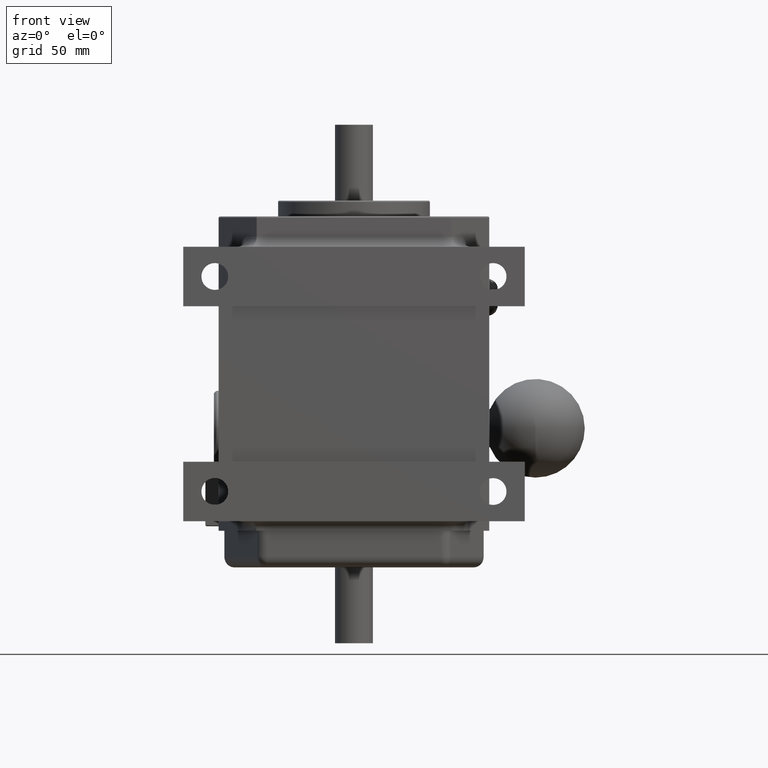
[diagram: clean part render]
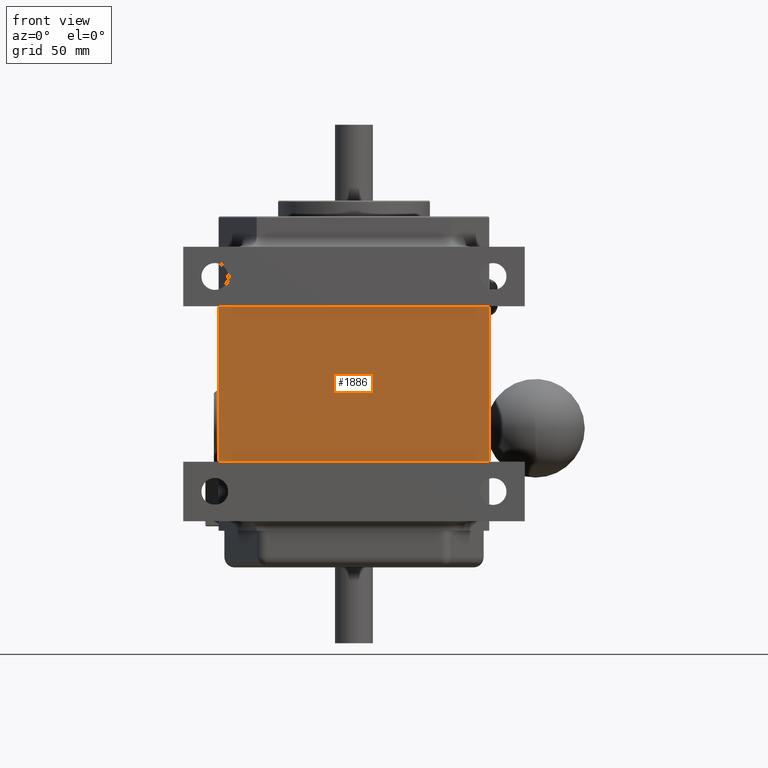
[diagram: same view with one face highlighted and labeled with its STEP entity id]
A machine part, front view. The second image highlights one B-rep face of the part: STEP entity #1886.
In plain terms, the highlighted planar face has unit normal (-0, 1, 0).
Its self-contained STEP definition (entity closure, byte-faithful):
#265 = VERTEX_POINT ( 'NONE', #1156 ) ;
#271 = VERTEX_POINT ( 'NONE', #1162 ) ;
#276 = VERTEX_POINT ( 'NONE', #1167 ) ;
#277 = VERTEX_POINT ( 'NONE', #1168 ) ;
#626 = EDGE_CURVE ( 'NONE', #277, #276, #4174, .T. ) ;
#636 = EDGE_CURVE ( 'NONE', #265, #271, #4202, .T. ) ;
#643 = EDGE_CURVE ( 'NONE', #265, #276, #4214, .T. ) ;
#647 = EDGE_CURVE ( 'NONE', #271, #277, #4221, .T. ) ;
#1156 = CARTESIAN_POINT ( 'NONE',  ( 2.674999999999999800, 0.1249999999999997900, -1.537499999999999600 ) ) ;
#1162 = CARTESIAN_POINT ( 'NONE',  ( -2.674999999999999800, 0.1249999999999997900, -1.537499999999999600 ) ) ;
#1167 = CARTESIAN_POINT ( 'NONE',  ( 2.674999999999999400, 0.1249999999999997900, 1.537500000000000500 ) ) ;
#1168 = CARTESIAN_POINT ( 'NONE',  ( -2.674999999999999400, 0.1249999999999997900, 1.537500000000000500 ) ) ;
#1283 = EDGE_LOOP ( 'NONE', ( #1832, #1833, #1834, #1835 ) ) ;
#1832 = ORIENTED_EDGE ( 'NONE', *, *, #647, .F. ) ;
#1833 = ORIENTED_EDGE ( 'NONE', *, *, #636, .F. ) ;
#1834 = ORIENTED_EDGE ( 'NONE', *, *, #643, .T. ) ;
#1835 = ORIENTED_EDGE ( 'NONE', *, *, #626, .F. ) ;
#1886 = ADVANCED_FACE ( 'NONE', ( #5639 ), #6505, .F. ) ;
#4174 = LINE ( 'NONE', #5207, #4183 ) ;
#4183 = VECTOR ( 'NONE', #5214, 39.37007874015748100 ) ;
#4202 = LINE ( 'NONE', #5234, #4203 ) ;
#4203 = VECTOR ( 'NONE', #5235, 39.37007874015748100 ) ;
#4214 = LINE ( 'NONE', #5249, #4215 ) ;
#4215 = VECTOR ( 'NONE', #5250, 39.37007874015748100 ) ;
#4221 = LINE ( 'NONE', #5258, #4222 ) ;
#4222 = VECTOR ( 'NONE', #5259, 39.37007874015748100 ) ;
#4456 = AXIS2_PLACEMENT_3D ( 'NONE', #6501, #6508, #6509 ) ;
#5207 = CARTESIAN_POINT ( 'NONE',  ( -2.243181818181819500, 0.1250000000000004400, 1.537499999999999900 ) ) ;
#5214 = DIRECTION ( 'NONE',  ( 1.000000000000000000, 2.174694784430106700E-016, 0.0000000000000000000 ) ) ;
#5234 = CARTESIAN_POINT ( 'NONE',  ( -2.243181818181819500, 0.1250000000000004400, -1.537500000000000100 ) ) ;
#5235 = DIRECTION ( 'NONE',  ( -1.000000000000000000, -2.174694784430106700E-016, 0.0000000000000000000 ) ) ;
#5249 = CARTESIAN_POINT ( 'NONE',  ( 2.674999999999999800, 0.1249999999999997900, -3.624571577257242000 ) ) ;
#5250 = DIRECTION ( 'NONE',  ( -6.427877632151208200E-017, -0.0000000000000000000, 1.000000000000000000 ) ) ;
#5258 = CARTESIAN_POINT ( 'NONE',  ( -2.674999999999999800, 0.1249999999999997900, -3.624571577257242000 ) ) ;
#5259 = DIRECTION ( 'NONE',  ( 6.427877632151208200E-017, 0.0000000000000000000, 1.000000000000000000 ) ) ;
#5639 = FACE_OUTER_BOUND ( 'NONE', #1283, .T. ) ;
#6501 = CARTESIAN_POINT ( 'NONE',  ( -1.811363636363636700, 0.1249999999999999900, -3.624571577257242400 ) ) ;
#6505 = PLANE ( 'NONE',  #4456 ) ;
#6508 = DIRECTION ( 'NONE',  ( -2.174694784430106700E-016, 1.000000000000000000, 1.397867196159417300E-032 ) ) ;
#6509 = DIRECTION ( 'NONE',  ( 1.000000000000000000, 2.174694784430106700E-016, 0.0000000000000000000 ) ) ;